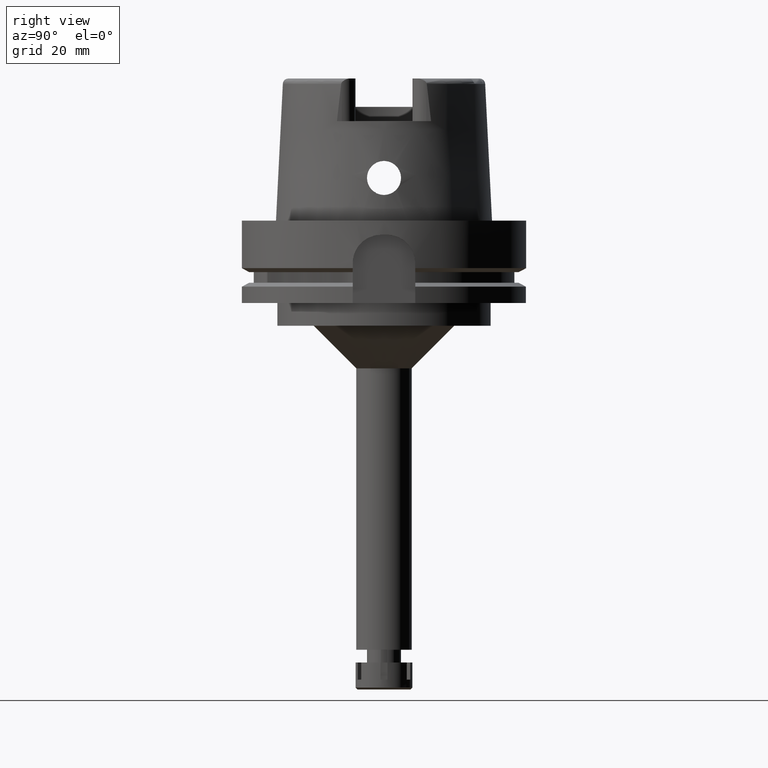
[diagram: clean part render]
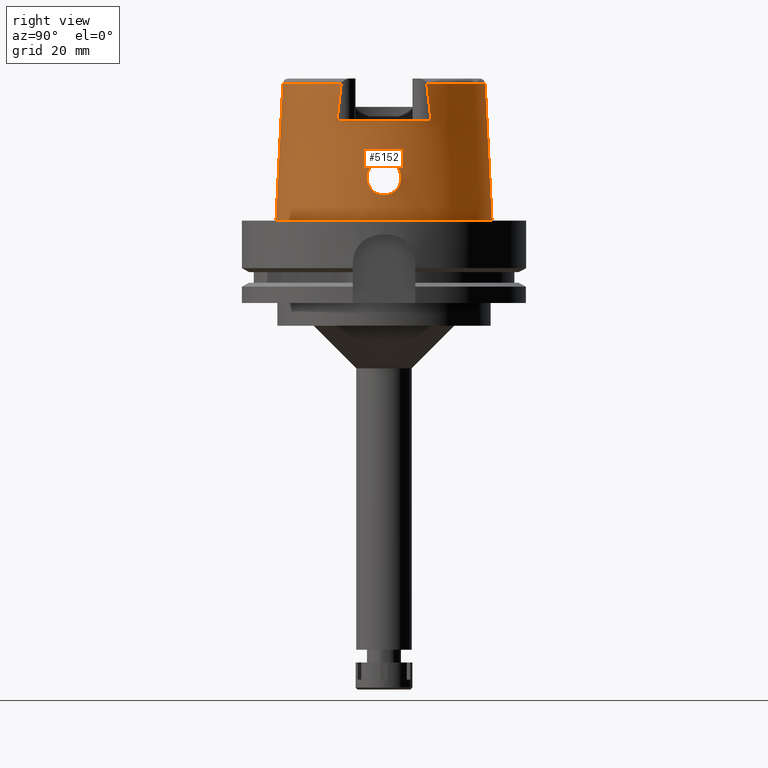
[diagram: same view with one face highlighted and labeled with its STEP entity id]
A machine part, right view. The second image highlights one B-rep face of the part: STEP entity #5152.
In plain terms, the highlighted conical surface has half-angle 2.862 deg.
Its self-contained STEP definition (entity closure, byte-faithful):
#6 = VERTEX_POINT ( 'NONE', #4096 ) ;
#22 = ORIENTED_EDGE ( 'NONE', *, *, #1991, .F. ) ;
#23 = CARTESIAN_POINT ( 'NONE',  ( 36.71471743785868114, -5.699807342214346484, 16.91677120293649139 ) ) ;
#62 = CARTESIAN_POINT ( 'NONE',  ( 37.21841516280429829, -4.258839404256502981, 10.77359671046755984 ) ) ;
#79 = VERTEX_POINT ( 'NONE', #2531 ) ;
#88 = CARTESIAN_POINT ( 'NONE',  ( 37.01935567087116397, -5.274353906028143690, 12.13803092428669217 ) ) ;
#107 = CARTESIAN_POINT ( 'NONE',  ( 37.33690346275246696, 3.448871330678021874, 10.08744184805980382 ) ) ;
#121 = CARTESIAN_POINT ( 'NONE',  ( 37.16180421871322181, -4.583096864683446015, 11.12637670599256090 ) ) ;
#143 = CARTESIAN_POINT ( 'NONE',  ( 37.10850795906012678, 4.864945071336020277, 11.48687514058115688 ) ) ;
#172 = VERTEX_POINT ( 'NONE', #4469 ) ;
#176 = CARTESIAN_POINT ( 'NONE',  ( 36.76804647207907806, 5.999429092852764711, 14.91417425358650028 ) ) ;
#203 = CARTESIAN_POINT ( 'NONE',  ( 37.35521687651382194, 3.298586860894792139, 9.988077525073066454 ) ) ;
#213 = DIRECTION ( 'NONE',  ( 0.0000000000000000000, 0.0000000000000000000, -1.000000000000000000 ) ) ;
#214 = CARTESIAN_POINT ( 'NONE',  ( 32.25000000000000000, 15.55558130450388177, 43.94359287780135048 ) ) ;
#230 = EDGE_CURVE ( 'NONE', #79, #5827, #3308, .T. ) ;
#236 = CARTESIAN_POINT ( 'NONE',  ( 37.48354635218326791, 1.945613778294241092, 9.322656526189721404 ) ) ;
#294 = CARTESIAN_POINT ( 'NONE',  ( 36.80191179850883287, -4.125073597687790361, 19.35752356899445914 ) ) ;
#316 = CARTESIAN_POINT ( 'NONE',  ( 36.84722144887287243, 3.382054583298502504, 19.95620573781357976 ) ) ;
#352 = CARTESIAN_POINT ( 'NONE',  ( 36.72267357464760806, 5.422019585097829442, 17.58897493026787018 ) ) ;
#463 = CARTESIAN_POINT ( 'NONE',  ( 36.74781535825380985, -5.991733129801088964, 15.33912322331754119 ) ) ;
#469 = CARTESIAN_POINT ( 'NONE',  ( 37.50998555997327344, 1.517592506723962842, 9.191699911535691214 ) ) ;
#489 = CARTESIAN_POINT ( 'NONE',  ( 36.72196373336264941, -5.460058584914603941, 17.48791676754009217 ) ) ;
#519 = CARTESIAN_POINT ( 'NONE',  ( 37.12700342142721155, -4.770419183647396366, 11.35554695570349715 ) ) ;
#557 = CARTESIAN_POINT ( 'NONE',  ( 37.44575798109693210, -2.427495654670445813, 9.512690912785036090 ) ) ;
#579 = CARTESIAN_POINT ( 'NONE',  ( 37.44482247239326966, 2.444141204616387064, 9.517352663986144989 ) ) ;
#587 = CARTESIAN_POINT ( 'NONE',  ( 36.98653479186391024, -5.410826303749213473, 12.39968017810307899 ) ) ;
#604 = CARTESIAN_POINT ( 'NONE',  ( 37.23558469667462845, 4.153382016882767758, 10.66978355199676010 ) ) ;
#637 = LINE ( 'NONE', #3477, #2132 ) ;
#639 = CARTESIAN_POINT ( 'NONE',  ( 36.71869691279204773, 5.560410601710803036, 17.25435409549450583 ) ) ;
#647 = CARTESIAN_POINT ( 'NONE',  ( 36.87019529317930733, -2.964167355062032438, 20.21776577746368631 ) ) ;
#672 = CARTESIAN_POINT ( 'NONE',  ( 37.35653249524433761, 3.287729809431539252, 9.980948807421794911 ) ) ;
#704 = CARTESIAN_POINT ( 'NONE',  ( 36.86953088260164435, 5.819979767150008421, 13.48870076552487873 ) ) ;
#746 = CIRCLE ( 'NONE', #837, 35.59494289391000166 ) ;
#767 = CARTESIAN_POINT ( 'NONE',  ( 36.74922096799047466, 4.946676915821996978, 18.40126551705130353 ) ) ;
#774 = CARTESIAN_POINT ( 'NONE',  ( 36.85457335898542652, -3.253798266388082450, 20.04124897871600552 ) ) ;
#775 = CARTESIAN_POINT ( 'NONE',  ( 32.24997259519825121, 15.06456602472349893, 48.09965197949710358 ) ) ;
#822 = CARTESIAN_POINT ( 'NONE',  ( 36.89909629768656885, 2.351861135394789581, 20.52010484799939860 ) ) ;
#837 = AXIS2_PLACEMENT_3D ( 'NONE', #898, #5739, #3323 ) ;
#863 = CARTESIAN_POINT ( 'NONE',  ( 36.94998175922999906, 0.7278236856379323161, 21.00000000000000000 ) ) ;
#888 = CARTESIAN_POINT ( 'NONE',  ( 37.55000165824999669, 0.3725651092585718915, 9.000000000000001776 ) ) ;
#891 = ORIENTED_EDGE ( 'NONE', *, *, #2141, .T. ) ;
#898 = CARTESIAN_POINT ( 'NONE',  ( 0.0000000000000000000, 0.0000000000000000000, 48.09987853799000135 ) ) ;
#925 = EDGE_CURVE ( 'NONE', #2455, #4196, #637, .T. ) ;
#939 = CARTESIAN_POINT ( 'NONE',  ( 0.0000000000000000000, 0.0000000000000000000, 48.09987853799000135 ) ) ;
#942 = ORIENTED_EDGE ( 'NONE', *, *, #230, .T. ) ;
#946 = CARTESIAN_POINT ( 'NONE',  ( 37.51951320242008592, 1.326388423862258081, 9.145214055523142704 ) ) ;
#971 = CARTESIAN_POINT ( 'NONE',  ( 36.93068084710078836, -5.617683048002138690, 12.89133533381973606 ) ) ;
#996 = CARTESIAN_POINT ( 'NONE',  ( 36.80587811518294217, -5.968770580326600239, 14.27426339064203731 ) ) ;
#1028 = CARTESIAN_POINT ( 'NONE',  ( 37.42175158480954167, -2.689182493007880037, 9.635601683245873517 ) ) ;
#1029 = B_SPLINE_CURVE_WITH_KNOTS ( 'NONE', 3,
 ( #1124, #4021, #5522, #4058, #3578, #2183, #4085, #1711, #1249, #3145, #2521, #3076, #4428, #3959, #3484, #3016, #647, #4462, #1744, #774, #2210, #6022, #4119, #3644, #5553, #1278, #3175, #294, #2675, #4587, #1439, #1902, #4807, #1972, #3368, #3838, #3338, #2030, #489, #2404, #1469, #1098, #5806, #5274, #23, #2968, #1938, #2436, #3933, #463, #1526, #3429, #3868, #2380, #3897, #996, #5340, #4309, #2994, #5844, #3800, #971, #2877, #1497, #2471, #1070, #4874, #4372, #587, #88, #5750, #4283, #4344, #5714, #2498, #4402, #1560, #2001, #519, #121, #6175, #3460, #5370, #5245, #2903, #62, #4777, #5778, #3395, #5304, #1028, #2936, #4843, #557, #5141, #5520, #2277, #1247, #2697, #2181, #4559 ),
 .UNSPECIFIED., .F., .F.,
 ( 4, 2, 2, 1, 1, 1, 1, 2, 2, 2, 2, 1, 1, 2, 2, 2, 1, 1, 1, 2, 2, 2, 2, 2, 1, 1, 2, 2, 2, 2, 1, 1, 2, 2, 2, 2, 2, 1, 1, 1, 2, 2, 2, 2, 1, 1, 2, 2, 2, 1, 1, 1, 2, 2, 2, 2, 2, 1, 1, 2, 2, 4 ),
 ( 0.0000000000000000000, 0.06250000000001788847, 0.09375000000002681189, 0.1093750000000311834, 0.1171875000000334038, 0.1210937500000345279, 0.1230468750000350830, 0.1240234375000354022, 0.1250000000000357214, 0.1562500000000410505, 0.1718750000000437428, 0.1796875000000449363, 0.1835937500000455191, 0.1855468750000458245, 0.1875000000000461298, 0.2187500000000495159, 0.2343750000000512368, 0.2421875000000523470, 0.2460937500000529299, 0.2480468750000533740, 0.2500000000000537903, 0.3125000000000658362, 0.3437500000000718869, 0.3593750000000752176, 0.3671875000000768829, 0.3710937500000777156, 0.3730468750000778266, 0.3750000000000779377, 0.4375000000000758837, 0.4687500000000745515, 0.4843750000000737188, 0.4921875000000733302, 0.4960937500000731082, 0.5000000000000728306, 0.5625000000000689448, 0.5937500000000669464, 0.6093750000000658362, 0.6171875000000652811, 0.6210937500000649480, 0.6230468750000646150, 0.6240234375000643929, 0.6250000000000640599, 0.6562500000000583977, 0.6718750000000556222, 0.6796875000000542899, 0.6835937500000537348, 0.6855468750000535127, 0.6875000000000532907, 0.7187500000000508482, 0.7343750000000495159, 0.7421875000000489608, 0.7460937500000486278, 0.7480468750000482947, 0.7500000000000479616, 0.8125000000000358602, 0.8437500000000296430, 0.8593750000000264233, 0.8671875000000249800, 0.8710937500000242029, 0.8730468750000238698, 0.8750000000000235367, 1.000000000000000000 ),
 .UNSPECIFIED. ) ;
#1070 = CARTESIAN_POINT ( 'NONE',  ( 36.94822053460028854, -5.554798339113931505, 12.73190405543532933 ) ) ;
#1090 = CARTESIAN_POINT ( 'NONE',  ( 36.71763611367868663, 5.802818758825710077, 16.53846350264660003 ) ) ;
#1098 = CARTESIAN_POINT ( 'NONE',  ( 36.71957857212929355, -5.529860257604926943, 17.32825280591639228 ) ) ;
#1118 = CARTESIAN_POINT ( 'NONE',  ( 36.71984044655929580, 5.850219281319772868, 16.34658812603357703 ) ) ;
#1124 = CARTESIAN_POINT ( 'NONE',  ( 36.94998175923000616, -1.394597051988999957E-13, 21.00000000000000000 ) ) ;
#1131 = CARTESIAN_POINT ( 'NONE',  ( 0.0000000000000000000, 0.0000000000000000000, 35.00000000000000000 ) ) ;
#1138 = DIRECTION ( 'NONE',  ( 5.154182075151068004E-05, -0.04993927430816067631, -0.9987522546783135224 ) ) ;
#1142 = ORIENTED_EDGE ( 'NONE', *, *, #1349, .F. ) ;
#1154 = CARTESIAN_POINT ( 'NONE',  ( 36.95774489227443382, 5.519693041099361430, 12.64763322360025732 ) ) ;
#1179 = CARTESIAN_POINT ( 'NONE',  ( 32.25000552016999222, -15.06439831049000055, 48.10004151400000438 ) ) ;
#1182 = CARTESIAN_POINT ( 'NONE',  ( 37.14350679648397602, 4.685766028680633077, 11.25122239263093427 ) ) ;
#1209 = CARTESIAN_POINT ( 'NONE',  ( 36.78447426090951211, 4.390347065131883220, 19.09029678227366844 ) ) ;
#1242 = CARTESIAN_POINT ( 'NONE',  ( 36.79297988200322322, 4.259196576687912739, 19.22603776394247177 ) ) ;
#1247 = CARTESIAN_POINT ( 'NONE',  ( 37.45644412486605290, -2.300685249194733828, 9.458609365823898329 ) ) ;
#1249 = CARTESIAN_POINT ( 'NONE',  ( 36.90486097321354464, -2.211800908984793868, 20.57755752650328418 ) ) ;
#1278 = CARTESIAN_POINT ( 'NONE',  ( 36.81715631358961360, -3.887142167145137162, 19.57163267877658086 ) ) ;
#1349 = EDGE_CURVE ( 'NONE', #79, #3742, #3377, .T. ) ;
#1439 = CARTESIAN_POINT ( 'NONE',  ( 36.79486479208713945, -4.230860244557368866, 19.25440632132363916 ) ) ;
#1458 = CARTESIAN_POINT ( 'NONE',  ( 0.0000000000000000000, 0.0000000000000000000, 1.023181539494999863E-12 ) ) ;
#1469 = CARTESIAN_POINT ( 'NONE',  ( 36.71996599172546638, -5.517288947232040996, 17.35803693592301755 ) ) ;
#1482 = DIRECTION ( 'NONE',  ( 0.0000000000000000000, 0.0000000000000000000, 1.000000000000000000 ) ) ;
#1497 = CARTESIAN_POINT ( 'NONE',  ( 36.94480014967199821, -5.567238668669252100, 12.76255512232842548 ) ) ;
#1526 = CARTESIAN_POINT ( 'NONE',  ( 36.75520430954323103, -5.997838674880071608, 15.17282634178888223 ) ) ;
#1552 = CARTESIAN_POINT ( 'NONE',  ( 37.00631580240509066, 5.327637900813932070, 12.23846285467738504 ) ) ;
#1560 = CARTESIAN_POINT ( 'NONE',  ( 37.07944034949226619, -5.003809135577720113, 11.68910189932267052 ) ) ;
#1581 = CARTESIAN_POINT ( 'NONE',  ( 36.71753689262443032, 5.609068337168703344, 17.13138083988818394 ) ) ;
#1590 = DIRECTION ( 'NONE',  ( 0.8896561898442558736, 0.4566309931134779343, 0.0000000000000000000 ) ) ;
#1610 = CARTESIAN_POINT ( 'NONE',  ( 36.71910958073421938, 5.545544434553716151, 17.29062471914825139 ) ) ;
#1644 = CARTESIAN_POINT ( 'NONE',  ( 37.28518751134353693, 3.827099166888705550, 10.37798948586336323 ) ) ;
#1679 = CARTESIAN_POINT ( 'NONE',  ( 36.97107769579498182, 5.469187823803400406, 12.53171190261546641 ) ) ;
#1706 = CARTESIAN_POINT ( 'NONE',  ( 36.85894363241949634, 3.184285591731610410, 20.08887232984249849 ) ) ;
#1711 = CARTESIAN_POINT ( 'NONE',  ( 36.90823929613641496, -2.126273191693851317, 20.61103980981948425 ) ) ;
#1744 = CARTESIAN_POINT ( 'NONE',  ( 36.85914309935986921, -3.171395856282790859, 20.09388249665637716 ) ) ;
#1748 = AXIS2_PLACEMENT_3D ( 'NONE', #1458, #1482, #5288 ) ;
#1793 = CARTESIAN_POINT ( 'NONE',  ( 36.89720180191812204, 2.396385875121800790, 20.50089800256374417 ) ) ;
#1824 = CARTESIAN_POINT ( 'NONE',  ( 36.80255027983732674, 4.111923164447265577, 19.37386066776001670 ) ) ;
#1902 = CARTESIAN_POINT ( 'NONE',  ( 36.79435038799910274, -4.238498976081209513, 19.24680091860885511 ) ) ;
#1938 = CARTESIAN_POINT ( 'NONE',  ( 36.72724461711472088, -5.925783873525110934, 15.96080321652184431 ) ) ;
#1947 = VERTEX_POINT ( 'NONE', #5465 ) ;
#1972 = CARTESIAN_POINT ( 'NONE',  ( 36.75576063044550779, -4.821039314594719016, 18.59330048664015322 ) ) ;
#1991 = EDGE_CURVE ( 'NONE', #2410, #1947, #1029, .T. ) ;
#2001 = CARTESIAN_POINT ( 'NONE',  ( 37.10389505768986851, -4.887757585945935013, 11.51449243852074389 ) ) ;
#2019 = CARTESIAN_POINT ( 'NONE',  ( 37.22566677179612071, 4.214813397340487988, 10.72969554206112974 ) ) ;
#2030 = CARTESIAN_POINT ( 'NONE',  ( 36.72417677239266709, -5.403958487521046017, 17.60866077456927670 ) ) ;
#2055 = CARTESIAN_POINT ( 'NONE',  ( 37.17830824650896204, 4.497059052842708127, 11.02314104154518581 ) ) ;
#2060 = FACE_OUTER_BOUND ( 'NONE', #4458, .T. ) ;
#2083 = CARTESIAN_POINT ( 'NONE',  ( 37.36305418549380164, 3.233430167820417367, 9.945685231628548451 ) ) ;
#2112 = CARTESIAN_POINT ( 'NONE',  ( 37.27380537120741621, 3.905228966316484751, 10.44364606335250301 ) ) ;
#2120 = ORIENTED_EDGE ( 'NONE', *, *, #4398, .F. ) ;
#2121 = B_SPLINE_CURVE_WITH_KNOTS ( 'NONE', 3,
 ( #3312, #888, #2853, #946, #469, #2386, #236, #2607, #5392, #4893, #5891, #3509, #579, #2580, #4052, #5461, #5923, #4958, #2083, #4423, #672, #203, #3917, #107, #5864, #1644, #2112, #4459, #4489, #604, #3452, #2986, #2019, #5959, #2055, #1182, #4389, #143, #5487, #4016, #4983, #1552, #2554, #1679, #3548, #1154, #3049, #3073, #704, #4518, #2148, #3575, #3012, #2960, #4866, #176, #2489, #5829, #4923, #5362, #1118, #1090, #2517, #3956, #1581, #3481, #639, #5421, #3981, #1610, #352, #2204, #767, #3685, #2668, #3168, #4675, #1209, #2273, #4176, #4609, #1242, #1824, #5517, #4583, #4081, #5098, #4112, #316, #1706, #3601, #2239, #3193, #6074, #1793, #822, #5600, #863, #2694 ),
 .UNSPECIFIED., .F., .F.,
 ( 4, 2, 2, 1, 1, 1, 2, 2, 2, 2, 1, 1, 1, 2, 2, 2, 2, 1, 1, 2, 2, 2, 2, 2, 2, 1, 1, 2, 2, 2, 2, 2, 1, 2, 2, 2, 2, 1, 1, 1, 1, 2, 2, 2, 2, 2, 1, 1, 2, 2, 2, 1, 2, 2, 2, 1, 2, 2, 4 ),
 ( 0.0000000000000000000, 0.06250000000000774381, 0.09375000000001167122, 0.1093750000000136696, 0.1171875000000146549, 0.1210937500000151962, 0.1230468750000155431, 0.1250000000000158762, 0.1562500000000217049, 0.1718750000000245914, 0.1796875000000258960, 0.1835937500000266731, 0.1855468750000270062, 0.1865234375000270894, 0.1875000000000271450, 0.2187500000000284217, 0.2343750000000291434, 0.2421875000000296152, 0.2460937500000298372, 0.2480468750000300038, 0.2500000000000301981, 0.2812500000000328626, 0.2968750000000343059, 0.3125000000000356937, 0.3437500000000383582, 0.3593750000000397460, 0.3671875000000403011, 0.3710937500000406342, 0.3750000000000410227, 0.4375000000000477396, 0.4687500000000509592, 0.4843750000000524025, 0.4921875000000531797, 0.4960937500000535127, 0.5000000000000538458, 0.5625000000000621725, 0.5937500000000662803, 0.6093750000000680567, 0.6171875000000687228, 0.6210937500000689448, 0.6230468750000690559, 0.6240234375000688338, 0.6250000000000686118, 0.6875000000000563993, 0.7187500000000502931, 0.7343750000000471845, 0.7421875000000455191, 0.7460937500000448530, 0.7480468750000444089, 0.7500000000000439648, 0.7812500000000387468, 0.7968750000000359712, 0.8046875000000346390, 0.8125000000000333067, 0.8437500000000284217, 0.8593750000000258682, 0.8671875000000246470, 0.8750000000000233147, 1.000000000000000000 ),
 .UNSPECIFIED. ) ;
#2132 = VECTOR ( 'NONE', #3913, 1000.000000000000227 ) ;
#2141 = EDGE_CURVE ( 'NONE', #6, #4196, #5532, .T. ) ;
#2148 = CARTESIAN_POINT ( 'NONE',  ( 36.80815762370356481, 5.957537315252417365, 14.26277308262408994 ) ) ;
#2161 = CARTESIAN_POINT ( 'NONE',  ( 0.0000000000000000000, 0.0000000000000000000, 24.04993926899999934 ) ) ;
#2181 = CARTESIAN_POINT ( 'NONE',  ( 37.55000165824999669, -0.7490591626260816316, 8.999999999999994671 ) ) ;
#2183 = CARTESIAN_POINT ( 'NONE',  ( 36.91960058821420176, -1.808267391346471742, 20.72193690257079979 ) ) ;
#2204 = CARTESIAN_POINT ( 'NONE',  ( 36.73062635919750107, 5.263057011291146559, 17.90742315529285378 ) ) ;
#2210 = CARTESIAN_POINT ( 'NONE',  ( 36.85257459687434789, -3.289353727239169523, 20.01800302703443890 ) ) ;
#2239 = CARTESIAN_POINT ( 'NONE',  ( 36.88082111602683710, 2.758243684147743124, 20.32933279257117576 ) ) ;
#2273 = CARTESIAN_POINT ( 'NONE',  ( 36.78894780111047424, 4.321307243267649589, 19.16266128953339631 ) ) ;
#2277 = CARTESIAN_POINT ( 'NONE',  ( 37.45579137639160905, -2.308598250113387707, 9.461905677801446757 ) ) ;
#2376 = B_SPLINE_CURVE_WITH_KNOTS ( 'NONE', 3,
 ( #1179, #2485, #5860, #3070 ),
 .UNSPECIFIED., .F., .F.,
 ( 4, 4 ),
 ( 0.0000000000000000000, 1.000000000000000000 ),
 .UNSPECIFIED. ) ;
#2379 = EDGE_CURVE ( 'NONE', #172, #5827, #2376, .T. ) ;
#2380 = CARTESIAN_POINT ( 'NONE',  ( 36.76210510960908096, -5.999969291128494753, 15.02948134557362003 ) ) ;
#2386 = CARTESIAN_POINT ( 'NONE',  ( 37.49283580356895129, 1.803149696092551268, 9.276494919456160559 ) ) ;
#2403 = ORIENTED_EDGE ( 'NONE', *, *, #4019, .T. ) ;
#2404 = CARTESIAN_POINT ( 'NONE',  ( 36.72095926933153720, -5.487190704883518677, 17.42776760261489244 ) ) ;
#2410 = VERTEX_POINT ( 'NONE', #2604 ) ;
#2436 = CARTESIAN_POINT ( 'NONE',  ( 36.73238964403623896, -5.953612642405698097, 15.76901430468022980 ) ) ;
#2455 = VERTEX_POINT ( 'NONE', #4723 ) ;
#2471 = CARTESIAN_POINT ( 'NONE',  ( 36.94685047858938987, -5.559788466716807598, 12.74416401142805277 ) ) ;
#2485 = CARTESIAN_POINT ( 'NONE',  ( 32.25000000000000000, -15.55533879123916918, 43.94468579048117363 ) ) ;
#2489 = CARTESIAN_POINT ( 'NONE',  ( 36.76566029138851377, 5.999906815838595975, 14.95958094299513341 ) ) ;
#2498 = CARTESIAN_POINT ( 'NONE',  ( 37.07431617320635553, -5.027968615200914648, 11.72590029847478377 ) ) ;
#2517 = CARTESIAN_POINT ( 'NONE',  ( 36.71654653491210496, 5.716830651082784875, 16.82420974151252224 ) ) ;
#2521 = CARTESIAN_POINT ( 'NONE',  ( 36.90237964645319124, -2.272847603763612945, 20.55285577762249360 ) ) ;
#2531 = CARTESIAN_POINT ( 'NONE',  ( 32.25000000000000000, 16.55285457013000183, 35.00000000000000000 ) ) ;
#2544 = ORIENTED_EDGE ( 'NONE', *, *, #2379, .F. ) ;
#2554 = CARTESIAN_POINT ( 'NONE',  ( 36.98991360894655145, 5.395393653741292539, 12.37181202492313048 ) ) ;
#2559 = DIRECTION ( 'NONE',  ( 0.0000000000000000000, 0.0000000000000000000, -1.000000000000000000 ) ) ;
#2568 = LINE ( 'NONE', #4477, #4338 ) ;
#2580 = CARTESIAN_POINT ( 'NONE',  ( 37.42924552226220669, 2.615721729274458340, 9.596655348328514634 ) ) ;
#2596 = EDGE_CURVE ( 'NONE', #3783, #6, #2568, .T. ) ;
#2604 = CARTESIAN_POINT ( 'NONE',  ( 36.94998175923000616, -1.394597051988999957E-13, 21.00000000000000000 ) ) ;
#2607 = CARTESIAN_POINT ( 'NONE',  ( 37.47145815582884865, 2.110898902805716570, 9.383189747271956094 ) ) ;
#2652 = ORIENTED_EDGE ( 'NONE', *, *, #2596, .T. ) ;
#2668 = CARTESIAN_POINT ( 'NONE',  ( 36.76916009663001716, 4.628588926272152904, 18.81937011722786934 ) ) ;
#2675 = CARTESIAN_POINT ( 'NONE',  ( 36.79780175130938602, -4.187045417410935499, 19.29764023401527950 ) ) ;
#2694 = CARTESIAN_POINT ( 'NONE',  ( 36.94998175923000616, -1.394597051988999957E-13, 21.00000000000000000 ) ) ;
#2697 = CARTESIAN_POINT ( 'NONE',  ( 37.51913731733982615, -1.534104571059917488, 9.142248273737109798 ) ) ;
#2853 = CARTESIAN_POINT ( 'NONE',  ( 37.54237954429252255, 0.7534733084178050211, 9.034802869988270757 ) ) ;
#2877 = CARTESIAN_POINT ( 'NONE',  ( 36.94004933455767770, -5.584378040715781921, 12.80547493322663932 ) ) ;
#2903 = CARTESIAN_POINT ( 'NONE',  ( 37.21715930252655369, -4.266296845163772389, 10.78113008883858903 ) ) ;
#2936 = CARTESIAN_POINT ( 'NONE',  ( 37.42948613191583718, -2.608080179443450497, 9.595763437092866610 ) ) ;
#2960 = CARTESIAN_POINT ( 'NONE',  ( 36.77559331271974941, 5.996032165253260438, 14.77699010448725403 ) ) ;
#2968 = CARTESIAN_POINT ( 'NONE',  ( 36.71620885480069774, -5.813391255872144114, 16.53515844543332491 ) ) ;
#2986 = CARTESIAN_POINT ( 'NONE',  ( 37.22750586226303682, 4.203499434685602942, 10.71855292237921375 ) ) ;
#2994 = CARTESIAN_POINT ( 'NONE',  ( 36.89778564757059343, -5.727707615563693011, 13.21009850543056530 ) ) ;
#3012 = CARTESIAN_POINT ( 'NONE',  ( 36.78368377135685563, 5.989813296405966270, 14.63850693617782639 ) ) ;
#3016 = CARTESIAN_POINT ( 'NONE',  ( 36.87477302239791754, -2.874498647482214064, 20.26753687025442829 ) ) ;
#3049 = CARTESIAN_POINT ( 'NONE',  ( 36.95523982655129203, 5.529030572544976430, 12.66964793386749299 ) ) ;
#3070 = CARTESIAN_POINT ( 'NONE',  ( 32.25000000000000000, -16.55285457013000183, 35.00000000000000000 ) ) ;
#3073 = CARTESIAN_POINT ( 'NONE',  ( 36.90767284457351138, 5.704294105451459984, 13.09073213760625087 ) ) ;
#3076 = CARTESIAN_POINT ( 'NONE',  ( 36.90187724948455639, -2.285052347079229662, 20.54784456236087564 ) ) ;
#3110 = DIRECTION ( 'NONE',  ( 0.0000000000000000000, -1.000000000000000000, 0.0000000000000000000 ) ) ;
#3145 = CARTESIAN_POINT ( 'NONE',  ( 36.90313027499487220, -2.254538170085857551, 20.56033827074919529 ) ) ;
#3168 = CARTESIAN_POINT ( 'NONE',  ( 36.77364782975554647, 4.558384543439502501, 18.90301815954517650 ) ) ;
#3175 = CARTESIAN_POINT ( 'NONE',  ( 36.81012590804294859, -3.998932515636464124, 19.47498797830987982 ) ) ;
#3193 = CARTESIAN_POINT ( 'NONE',  ( 36.88711994952079465, 2.625412983619499485, 20.39673761839879873 ) ) ;
#3308 = CIRCLE ( 'NONE', #5810, 36.24995854370000359 ) ;
#3312 = CARTESIAN_POINT ( 'NONE',  ( 37.55000165825000380, 0.0000000000000000000, 9.000000000000000000 ) ) ;
#3323 = DIRECTION ( 'NONE',  ( 0.9060280460804950309, -0.4232176505245974218, 0.0000000000000000000 ) ) ;
#3338 = CARTESIAN_POINT ( 'NONE',  ( 36.72592427970312912, -5.364110252023095882, 17.68975218693689655 ) ) ;
#3359 = EDGE_CURVE ( 'NONE', #2455, #3742, #4945, .T. ) ;
#3368 = CARTESIAN_POINT ( 'NONE',  ( 36.73711114786940612, -5.141475258909128598, 18.09899810859322855 ) ) ;
#3377 = B_SPLINE_CURVE_WITH_KNOTS ( 'NONE', 3,
 ( #4968, #4067, #214, #3585 ),
 .UNSPECIFIED., .F., .F.,
 ( 4, 4 ),
 ( 0.0000000000000000000, 1.000000000000000000 ),
 .UNSPECIFIED. ) ;
#3395 = CARTESIAN_POINT ( 'NONE',  ( 37.37920154022158670, -3.099554088438776667, 9.858807036692315506 ) ) ;
#3429 = CARTESIAN_POINT ( 'NONE',  ( 36.75857722100536051, -5.999184118844500091, 15.10173734124862754 ) ) ;
#3452 = CARTESIAN_POINT ( 'NONE',  ( 37.23074821842200066, 4.183444221587087064, 10.69895465953457325 ) ) ;
#3460 = CARTESIAN_POINT ( 'NONE',  ( 37.19964045387644092, -4.369297902691009483, 10.88739804148680790 ) ) ;
#3477 = CARTESIAN_POINT ( 'NONE',  ( 0.002482252536764999965, 35.59494263424999616, 48.09987853799000135 ) ) ;
#3481 = CARTESIAN_POINT ( 'NONE',  ( 36.71826982678857831, 5.576903453803066846, 17.21342714082165770 ) ) ;
#3484 = CARTESIAN_POINT ( 'NONE',  ( 36.88764643510791075, -2.613024244806410046, 20.40470655184175897 ) ) ;
#3491 = DIRECTION ( 'NONE',  ( 0.0000000000000000000, 1.000000000000000000, 0.0000000000000000000 ) ) ;
#3509 = CARTESIAN_POINT ( 'NONE',  ( 37.45939340440824594, 2.264876689887020955, 9.443880539912809624 ) ) ;
#3541 = AXIS2_PLACEMENT_3D ( 'NONE', #2161, #2559, #3110 ) ;
#3548 = CARTESIAN_POINT ( 'NONE',  ( 36.96306944284789608, 5.499648888773216449, 12.60114551944358041 ) ) ;
#3555 = FACE_BOUND ( 'NONE', #4401, .T. ) ;
#3575 = CARTESIAN_POINT ( 'NONE',  ( 36.78949159558842297, 5.983486453675979533, 14.54521603342003644 ) ) ;
#3578 = CARTESIAN_POINT ( 'NONE',  ( 36.92871493951894024, -1.515123200040275453, 20.80912843644669863 ) ) ;
#3579 = CARTESIAN_POINT ( 'NONE',  ( 1.065814103639999922E-14, -35.59494289391000166, 48.09987853799000135 ) ) ;
#3585 = CARTESIAN_POINT ( 'NONE',  ( 32.24997259519825121, 15.06456602472349893, 48.09965197949710358 ) ) ;
#3601 = CARTESIAN_POINT ( 'NONE',  ( 36.86792965838532865, 3.018333185473441649, 20.18926292665260647 ) ) ;
#3644 = CARTESIAN_POINT ( 'NONE',  ( 36.84054995967238000, -3.500639162298696316, 19.87691744490598822 ) ) ;
#3685 = CARTESIAN_POINT ( 'NONE',  ( 36.75653007624947577, 4.828228319886098241, 18.56845981540771717 ) ) ;
#3710 = DIRECTION ( 'NONE',  ( 0.0000000000000000000, 0.0000000000000000000, -1.000000000000000000 ) ) ;
#3711 = CARTESIAN_POINT ( 'NONE',  ( 0.0000000000000000000, 38.00001658251999714, 1.023181539494999863E-12 ) ) ;
#3742 = VERTEX_POINT ( 'NONE', #775 ) ;
#3783 = VERTEX_POINT ( 'NONE', #3579 ) ;
#3800 = CARTESIAN_POINT ( 'NONE',  ( 36.92287895974632761, -5.644574785711887976, 12.96493802533631090 ) ) ;
#3838 = CARTESIAN_POINT ( 'NONE',  ( 36.73198324550582328, -5.236770646857031863, 17.93428282280029507 ) ) ;
#3868 = CARTESIAN_POINT ( 'NONE',  ( 36.76087165488062425, -5.999800204498742850, 15.05438827536548985 ) ) ;
#3897 = CARTESIAN_POINT ( 'NONE',  ( 36.78131032406844270, -6.000419801345838522, 14.64910524598040631 ) ) ;
#3913 = DIRECTION ( 'NONE',  ( -5.154182075159067383E-05, 0.04993927430816067631, -0.9987522546783135224 ) ) ;
#3916 = ORIENTED_EDGE ( 'NONE', *, *, #925, .F. ) ;
#3917 = CARTESIAN_POINT ( 'NONE',  ( 37.35442680990939834, 3.305085175250554119, 9.992361906994238652 ) ) ;
#3933 = CARTESIAN_POINT ( 'NONE',  ( 36.74230684364371058, -5.981357832372403038, 15.48226559619284259 ) ) ;
#3956 = CARTESIAN_POINT ( 'NONE',  ( 36.71655597566742557, 5.670117240174960216, 16.96656458700451608 ) ) ;
#3959 = CARTESIAN_POINT ( 'NONE',  ( 36.89508234365349892, -2.448813485944450363, 20.47998432950904757 ) ) ;
#3981 = CARTESIAN_POINT ( 'NONE',  ( 36.71902651045322585, 5.548463823194974331, 17.28354746241912565 ) ) ;
#4016 = CARTESIAN_POINT ( 'NONE',  ( 37.06201828077185922, 5.085026754822690620, 11.80942053214750764 ) ) ;
#4019 = EDGE_CURVE ( 'NONE', #172, #3783, #746, .T. ) ;
#4021 = CARTESIAN_POINT ( 'NONE',  ( 36.94998175922999195, -0.3631582503722557975, 21.00000000000000000 ) ) ;
#4052 = CARTESIAN_POINT ( 'NONE',  ( 37.40308539941948140, 2.875079784890461010, 9.732794894068524272 ) ) ;
#4058 = CARTESIAN_POINT ( 'NONE',  ( 36.93377846802155062, -1.320312059271183447, 20.85622490189979672 ) ) ;
#4067 = CARTESIAN_POINT ( 'NONE',  ( 32.25000000000000000, 16.05167218287810726, 39.57715456939868659 ) ) ;
#4081 = CARTESIAN_POINT ( 'NONE',  ( 36.83279304890704253, 3.623117239809011902, 19.78433902147489221 ) ) ;
#4085 = CARTESIAN_POINT ( 'NONE',  ( 36.91466364792411525, -1.955066589415785483, 20.67420690998008936 ) ) ;
#4096 = CARTESIAN_POINT ( 'NONE',  ( 0.0000000000000000000, -38.00001658251999714, 6.821210263297000155E-13 ) ) ;
#4112 = CARTESIAN_POINT ( 'NONE',  ( 36.84474273341548667, 3.423711952775569944, 19.92753559526498819 ) ) ;
#4119 = CARTESIAN_POINT ( 'NONE',  ( 36.85046125195796662, -3.326708208039638404, 19.99331193242085192 ) ) ;
#4176 = CARTESIAN_POINT ( 'NONE',  ( 36.79090408789058841, 4.291162142430981596, 19.19358268065089845 ) ) ;
#4196 = VERTEX_POINT ( 'NONE', #3711 ) ;
#4283 = CARTESIAN_POINT ( 'NONE',  ( 37.04898031199585517, -5.144495187537117431, 11.91180162934593234 ) ) ;
#4309 = CARTESIAN_POINT ( 'NONE',  ( 36.86962136150560809, -5.813915311675263098, 13.50336500533334849 ) ) ;
#4338 = VECTOR ( 'NONE', #1138, 1000.000000000000227 ) ;
#4344 = CARTESIAN_POINT ( 'NONE',  ( 37.05825142641265302, -5.102631713467073560, 11.84271860121377351 ) ) ;
#4372 = CARTESIAN_POINT ( 'NONE',  ( 36.96692811447773153, -5.486345123639744692, 12.56527835986519648 ) ) ;
#4389 = CARTESIAN_POINT ( 'NONE',  ( 37.13186683566255653, 4.746792466658929399, 11.32880154398413097 ) ) ;
#4398 = EDGE_CURVE ( 'NONE', #1947, #2410, #2121, .T. ) ;
#4401 = EDGE_LOOP ( 'NONE', ( #2120, #22 ) ) ;
#4402 = CARTESIAN_POINT ( 'NONE',  ( 37.07758419378947679, -5.012585787029593121, 11.70239769246777684 ) ) ;
#4423 = CARTESIAN_POINT ( 'NONE',  ( 37.35850046494623911, 3.271442713747494402, 9.970292572902831552 ) ) ;
#4428 = CARTESIAN_POINT ( 'NONE',  ( 36.90156843379067908, -2.292518513563296167, 20.54476195610528322 ) ) ;
#4458 = EDGE_LOOP ( 'NONE', ( #2544, #2403, #2652, #891, #3916, #4790, #1142, #942 ) ) ;
#4459 = CARTESIAN_POINT ( 'NONE',  ( 37.25586636945796926, 4.023786229060579700, 10.54893967669921118 ) ) ;
#4462 = CARTESIAN_POINT ( 'NONE',  ( 36.86289881187848749, -3.101799393201154942, 20.13631020078212686 ) ) ;
#4469 = CARTESIAN_POINT ( 'NONE',  ( 32.25000552016999222, -15.06439831049000055, 48.10004151400000438 ) ) ;
#4477 = CARTESIAN_POINT ( 'NONE',  ( -0.002482252536761000127, -35.59494263424999616, 48.09987853799000135 ) ) ;
#4489 = CARTESIAN_POINT ( 'NONE',  ( 37.24668042069690443, 4.083403964689702903, 10.60328843627001660 ) ) ;
#4518 = CARTESIAN_POINT ( 'NONE',  ( 36.82225838300761467, 5.930942061800476672, 14.07103620839881764 ) ) ;
#4559 = CARTESIAN_POINT ( 'NONE',  ( 37.55000165825000380, 0.0000000000000000000, 9.000000000000000000 ) ) ;
#4583 = CARTESIAN_POINT ( 'NONE',  ( 36.82572834279864793, 3.739103409452908089, 19.69347930710109651 ) ) ;
#4587 = CARTESIAN_POINT ( 'NONE',  ( 36.79603966127412207, -4.213366307908128050, 19.27173219095945100 ) ) ;
#4609 = CARTESIAN_POINT ( 'NONE',  ( 36.79221695802523584, 4.270941136453687115, 19.21417489445273930 ) ) ;
#4675 = CARTESIAN_POINT ( 'NONE',  ( 36.78079601894183526, 4.447319055881408190, 19.02795957217745837 ) ) ;
#4723 = CARTESIAN_POINT ( 'NONE',  ( 0.0000000000000000000, 35.59494289391000166, 48.09987853799000135 ) ) ;
#4777 = CARTESIAN_POINT ( 'NONE',  ( 37.27342246941189785, -3.931114297973247851, 10.44490115549452369 ) ) ;
#4790 = ORIENTED_EDGE ( 'NONE', *, *, #3359, .T. ) ;
#4807 = CARTESIAN_POINT ( 'NONE',  ( 36.77254798614335840, -4.561075754843173513, 18.92336579966082155 ) ) ;
#4843 = CARTESIAN_POINT ( 'NONE',  ( 37.44044173439926482, -2.487510234669529474, 9.539756727490857457 ) ) ;
#4866 = CARTESIAN_POINT ( 'NONE',  ( 36.77170340282876282, 5.998323807748317194, 14.84586871749672810 ) ) ;
#4874 = CARTESIAN_POINT ( 'NONE',  ( 36.94905369668621375, -5.551755325976531097, 12.72446929267389848 ) ) ;
#4893 = CARTESIAN_POINT ( 'NONE',  ( 37.46231013038574531, 2.228496234761841333, 9.429186360530874111 ) ) ;
#4923 = CARTESIAN_POINT ( 'NONE',  ( 36.74416363428831289, 5.999695096179096687, 15.38426938622252393 ) ) ;
#4945 = CIRCLE ( 'NONE', #5043, 35.59494289391000166 ) ;
#4958 = CARTESIAN_POINT ( 'NONE',  ( 37.37200879156144850, 3.157378146471596647, 9.897493815111484849 ) ) ;
#4968 = CARTESIAN_POINT ( 'NONE',  ( 32.25000000000000000, 16.55285457013000183, 35.00000000000000000 ) ) ;
#4983 = CARTESIAN_POINT ( 'NONE',  ( 37.03946302271273794, 5.186539886608224847, 11.97691283067052126 ) ) ;
#5043 = AXIS2_PLACEMENT_3D ( 'NONE', #939, #3710, #3491 ) ;
#5049 = CARTESIAN_POINT ( 'NONE',  ( 32.25000000000000000, -16.55285457013000183, 35.00000000000000000 ) ) ;
#5098 = CARTESIAN_POINT ( 'NONE',  ( 36.83995049436544633, 3.503891531994205444, 19.87084743244962226 ) ) ;
#5136 = CONICAL_SURFACE ( 'NONE', #3541, 36.79747973821000073, 0.04996004983832824653 ) ;
#5141 = CARTESIAN_POINT ( 'NONE',  ( 37.45167754845891039, -2.358007411836528622, 9.482699018384295186 ) ) ;
#5152 = ADVANCED_FACE ( 'NONE', ( #2060, #3555 ), #5136, .T. ) ;
#5245 = CARTESIAN_POINT ( 'NONE',  ( 37.21423763426104614, -4.283604238065451320, 10.79870414871968975 ) ) ;
#5274 = CARTESIAN_POINT ( 'NONE',  ( 36.71922847700659531, -5.541574442519262789, 17.30024144842391820 ) ) ;
#5288 = DIRECTION ( 'NONE',  ( 0.0000000000000000000, -1.000000000000000000, 0.0000000000000000000 ) ) ;
#5304 = CARTESIAN_POINT ( 'NONE',  ( 37.39725550713846047, -2.934102071555923175, 9.763118088053772681 ) ) ;
#5340 = CARTESIAN_POINT ( 'NONE',  ( 36.85246824458380388, -5.860252696474554490, 13.69782209351163260 ) ) ;
#5362 = CARTESIAN_POINT ( 'NONE',  ( 36.73088728630978750, 5.963273442929371448, 15.76995501664337951 ) ) ;
#5370 = CARTESIAN_POINT ( 'NONE',  ( 37.20985621195405457, -4.309484051065490817, 10.82514528163371637 ) ) ;
#5392 = CARTESIAN_POINT ( 'NONE',  ( 37.46510143188383779, 2.193262516975648779, 9.415134949128676212 ) ) ;
#5421 = CARTESIAN_POINT ( 'NONE',  ( 36.71889293941956822, 5.553254265557877822, 17.27187298775425006 ) ) ;
#5461 = CARTESIAN_POINT ( 'NONE',  ( 37.39389957553089516, 2.961858505393647700, 9.781037491011820961 ) ) ;
#5465 = CARTESIAN_POINT ( 'NONE',  ( 37.55000165825000380, 0.0000000000000000000, 9.000000000000000000 ) ) ;
#5487 = CARTESIAN_POINT ( 'NONE',  ( 37.09653683464167528, 4.923253219192861074, 11.56912527929199008 ) ) ;
#5517 = CARTESIAN_POINT ( 'NONE',  ( 36.81172258304852107, 3.966476796691658091, 19.50617699079620593 ) ) ;
#5520 = CARTESIAN_POINT ( 'NONE',  ( 37.45415392294571433, -2.328345683967625757, 9.470178937981467371 ) ) ;
#5522 = CARTESIAN_POINT ( 'NONE',  ( 36.94593093642788517, -0.7414479164965097624, 20.96696163294818405 ) ) ;
#5532 = CIRCLE ( 'NONE', #1748, 38.00001658251999714 ) ;
#5553 = CARTESIAN_POINT ( 'NONE',  ( 36.83120344499207732, -3.658939787584094105, 19.75930225346712277 ) ) ;
#5600 = CARTESIAN_POINT ( 'NONE',  ( 36.93369841153610622, 1.519969756993934551, 20.86588656624779858 ) ) ;
#5714 = CARTESIAN_POINT ( 'NONE',  ( 37.06944078969834777, -5.050823309900860814, 11.76108891316403771 ) ) ;
#5739 = DIRECTION ( 'NONE',  ( 0.0000000000000000000, 0.0000000000000000000, -1.000000000000000000 ) ) ;
#5750 = CARTESIAN_POINT ( 'NONE',  ( 37.03086444102822838, -5.224993334499239417, 12.04861993317523705 ) ) ;
#5778 = CARTESIAN_POINT ( 'NONE',  ( 37.31986989406253485, -3.597220678729216026, 10.18165942247635947 ) ) ;
#5806 = CARTESIAN_POINT ( 'NONE',  ( 36.71932879702220021, -5.538168865273467745, 17.30841963616053647 ) ) ;
#5810 = AXIS2_PLACEMENT_3D ( 'NONE', #1131, #213, #1590 ) ;
#5827 = VERTEX_POINT ( 'NONE', #5049 ) ;
#5829 = CARTESIAN_POINT ( 'NONE',  ( 36.76455102891941351, 6.000017024434115775, 14.98107322163002841 ) ) ;
#5844 = CARTESIAN_POINT ( 'NONE',  ( 36.90757951137266701, -5.696189673109968155, 13.11208310118762732 ) ) ;
#5860 = CARTESIAN_POINT ( 'NONE',  ( 32.25000000000000000, -16.05145953529916625, 39.57800528581450550 ) ) ;
#5864 = CARTESIAN_POINT ( 'NONE',  ( 37.31760234866133885, 3.596830974074149534, 10.19359969957763745 ) ) ;
#5891 = CARTESIAN_POINT ( 'NONE',  ( 37.46043437577900903, 2.251970359324332982, 9.438634198799039865 ) ) ;
#5923 = CARTESIAN_POINT ( 'NONE',  ( 37.37942216528650619, 3.092179745451037576, 9.857921792614236622 ) ) ;
#5959 = CARTESIAN_POINT ( 'NONE',  ( 37.20135130327317796, 4.363746516814100751, 10.87729898759111613 ) ) ;
#6022 = CARTESIAN_POINT ( 'NONE',  ( 36.85123313281129498, -3.313108649127621597, 20.00235078751029150 ) ) ;
#6074 = CARTESIAN_POINT ( 'NONE',  ( 36.89319844002454829, 2.488527339000495164, 20.45983294434364907 ) ) ;
#6175 = CARTESIAN_POINT ( 'NONE',  ( 37.17923918027624808, -4.486608826909555425, 11.01410227270497089 ) ) ;